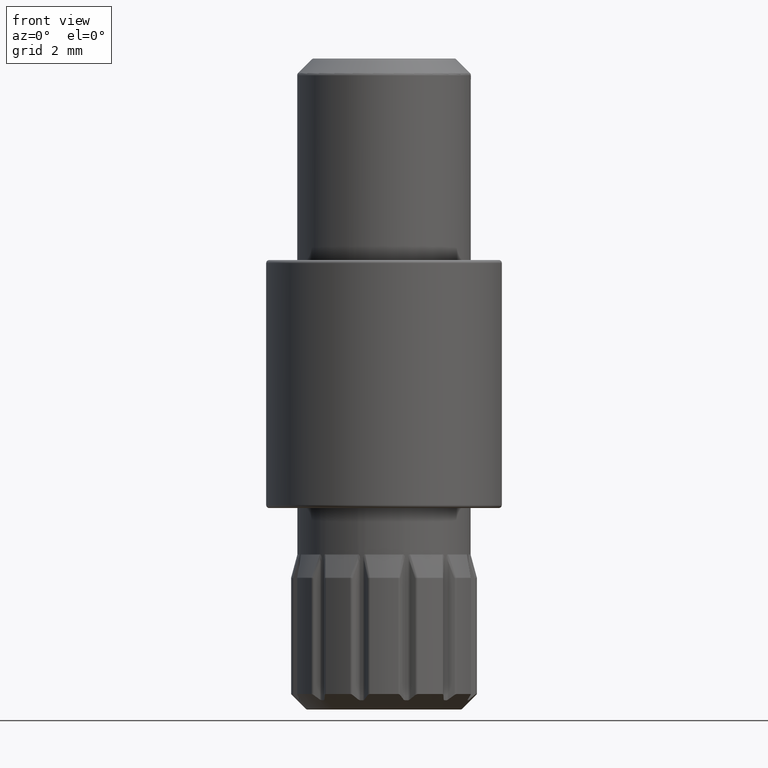
[diagram: clean part render]
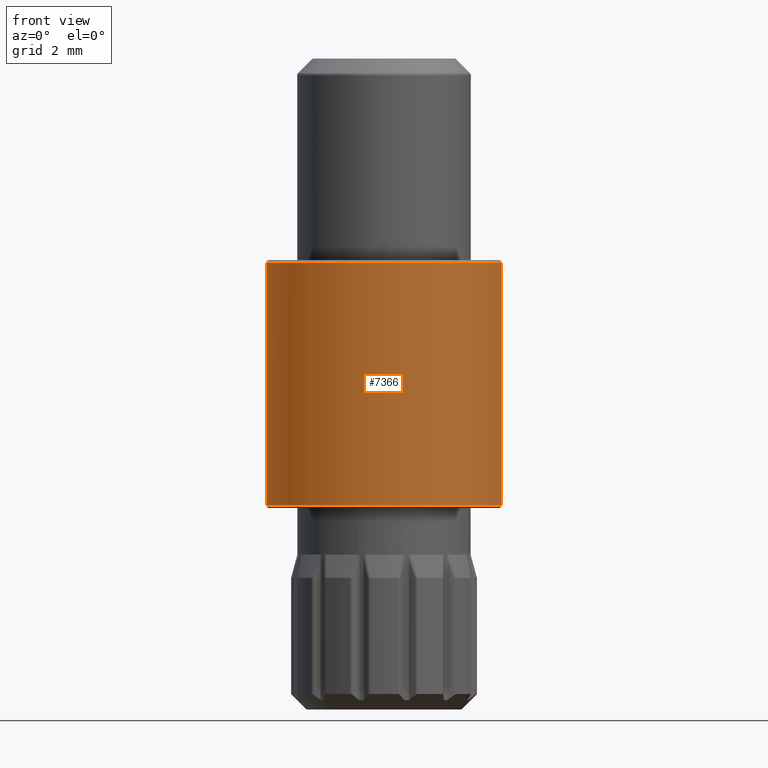
[diagram: same view with one face highlighted and labeled with its STEP entity id]
A machine part, front view. The second image highlights one B-rep face of the part: STEP entity #7366.
In plain terms, the highlighted cylindrical surface (bore or boss wall) has radius 3.8 mm, axis along (-0, -0, -1).
Its self-contained STEP definition (entity closure, byte-faithful):
#119 = DIRECTION ( 'NONE',  ( -0.000000000000000000, -0.000000000000000000, -1.000000000000000000 ) ) ;
#164 = CIRCLE ( 'NONE', #4845, 3.799999999999999822 ) ;
#403 = VERTEX_POINT ( 'NONE', #5632 ) ;
#674 = EDGE_LOOP ( 'NONE', ( #5863 ) ) ;
#772 = DIRECTION ( 'NONE',  ( -1.000000000000000000, 0.000000000000000000, 0.000000000000000000 ) ) ;
#805 = AXIS2_PLACEMENT_3D ( 'NONE', #4831, #1949, #772 ) ;
#1753 = EDGE_LOOP ( 'NONE', ( #5966 ) ) ;
#1949 = DIRECTION ( 'NONE',  ( -0.000000000000000000, -0.000000000000000000, -1.000000000000000000 ) ) ;
#2577 = DIRECTION ( 'NONE',  ( 1.000000000000000000, 0.000000000000000000, 0.000000000000000000 ) ) ;
#2797 = AXIS2_PLACEMENT_3D ( 'NONE', #7012, #119, #4685 ) ;
#3706 = CARTESIAN_POINT ( 'NONE',  ( 0.000000000000000000, 0.000000000000000000, 0.09999999999999939493 ) ) ;
#4191 = FACE_OUTER_BOUND ( 'NONE', #1753, .T. ) ;
#4201 = CIRCLE ( 'NONE', #2797, 3.799999999999999822 ) ;
#4301 = DIRECTION ( 'NONE',  ( 0.000000000000000000, 0.000000000000000000, 1.000000000000000000 ) ) ;
#4462 = CARTESIAN_POINT ( 'NONE',  ( 3.799999999999999822, 0.000000000000000000, 0.09999999999999939493 ) ) ;
#4685 = DIRECTION ( 'NONE',  ( 1.000000000000000000, 0.000000000000000000, 0.000000000000000000 ) ) ;
#4747 = EDGE_CURVE ( 'NONE', #7372, #7372, #164, .T. ) ;
#4831 = CARTESIAN_POINT ( 'NONE',  ( 0.000000000000000000, 0.000000000000000000, 8.000000000000000000 ) ) ;
#4845 = AXIS2_PLACEMENT_3D ( 'NONE', #3706, #4301, #2577 ) ;
#5471 = FACE_OUTER_BOUND ( 'NONE', #674, .T. ) ;
#5564 = CYLINDRICAL_SURFACE ( 'NONE', #805, 3.799999999999999822 ) ;
#5632 = CARTESIAN_POINT ( 'NONE',  ( 3.799999999999999822, 0.000000000000000000, 7.900000000000000355 ) ) ;
#5863 = ORIENTED_EDGE ( 'NONE', *, *, #6349, .T. ) ;
#5966 = ORIENTED_EDGE ( 'NONE', *, *, #4747, .T. ) ;
#6349 = EDGE_CURVE ( 'NONE', #403, #403, #4201, .T. ) ;
#7012 = CARTESIAN_POINT ( 'NONE',  ( 0.000000000000000000, 0.000000000000000000, 7.900000000000000355 ) ) ;
#7366 = ADVANCED_FACE ( 'NONE', ( #5471, #4191 ), #5564, .T. ) ;
#7372 = VERTEX_POINT ( 'NONE', #4462 ) ;